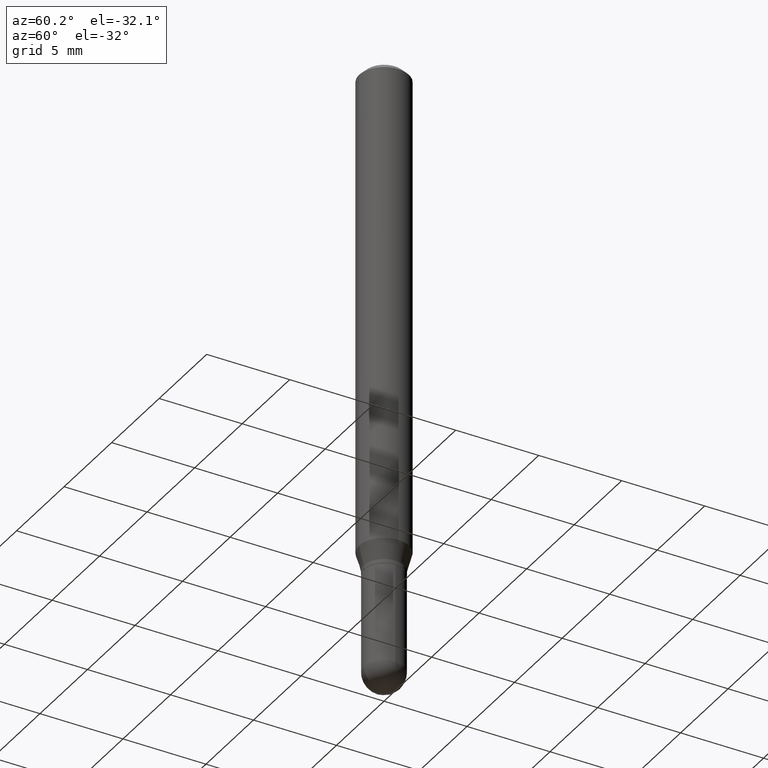
[diagram: clean part render]
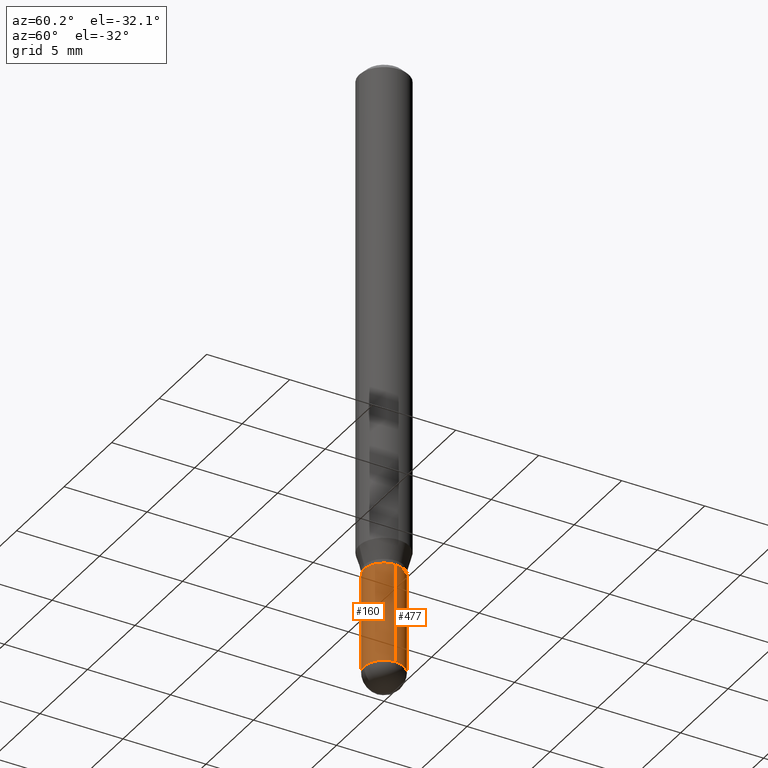
[diagram: same view with one multi-face feature highlighted, each face labeled with its STEP entity id]
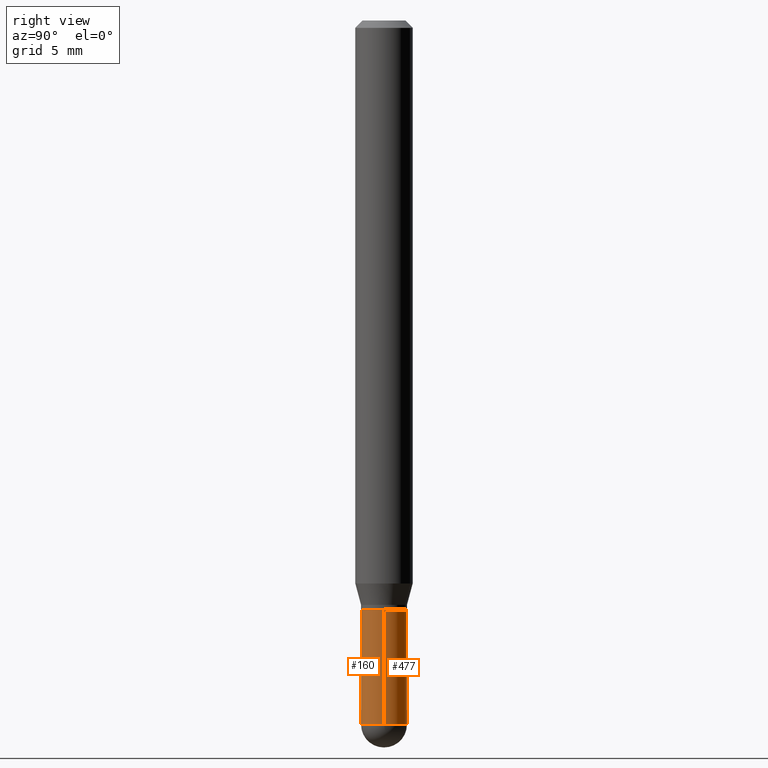
[diagram: same view with one multi-face feature highlighted, each face labeled with its STEP entity id]
A machine part, auxiliary view. The highlighted faces form ONE feature: a constant-radius fillet chain: 2 tangent blend faces with common blend radius 1.2001 mm. The faces share edges in the B-rep.
A second angle (right view) of the same feature is appended — it is thin or edge-on in the first view.
Their STEP definitions:
[1] entity #160 (Cylinder):
#3 = ORIENTED_EDGE ( 'NONE', *, *, #89, .T. ) ;
#47 = CARTESIAN_POINT ( 'NONE',  ( 3.543117479841335070E-29, -5.058632737782891656E-15, -1.448849999999999971 ) ) ;
#73 = DIRECTION ( 'NONE',  ( 1.000000000000000000, -6.982962677686266711E-15, 4.876176775795935793E-29 ) ) ;
#75 = DIRECTION ( 'NONE',  ( 1.000000000000000000, -6.982962677686267499E-15, 0.000000000000000000 ) ) ;
#77 = CYLINDRICAL_SURFACE ( 'NONE', #257, 0.04724999999999998646 ) ;
#83 = AXIS2_PLACEMENT_3D ( 'NONE', #379, #374, #387 ) ;
#89 = EDGE_CURVE ( 'NONE', #267, #121, #465, .T. ) ;
#107 = VECTOR ( 'NONE', #466, 39.37007874015748143 ) ;
#115 = ORIENTED_EDGE ( 'NONE', *, *, #269, .T. ) ;
#119 = CARTESIAN_POINT ( 'NONE',  ( 0.04724999999999998646, -4.976146491152720682E-15, -1.448849999999999971 ) ) ;
#121 = VERTEX_POINT ( 'NONE', #149 ) ;
#143 = VERTEX_POINT ( 'NONE', #297 ) ;
#144 = DIRECTION ( 'NONE',  ( -2.445468806185136877E-29, 3.491481338843145188E-15, 1.000000000000000000 ) ) ;
#149 = CARTESIAN_POINT ( 'NONE',  ( 0.04724999999999999339, -4.563715258001873701E-15, -1.212599999999999900 ) ) ;
#160 = ADVANCED_FACE ( 'NONE', ( #415 ), #77, .T. ) ;
#161 = DIRECTION ( 'NONE',  ( -2.445468806185136597E-29, 3.491481338843145583E-15, 1.000000000000000000 ) ) ;
#171 = VECTOR ( 'NONE', #144, 39.37007874015748143 ) ;
#177 = EDGE_CURVE ( 'NONE', #178, #143, #226, .T. ) ;
#178 = VERTEX_POINT ( 'NONE', #411 ) ;
#192 = CARTESIAN_POINT ( 'NONE',  ( 2.965375474380096235E-29, -4.233770271481197693E-15, -1.212599999999999900 ) ) ;
#198 = CARTESIAN_POINT ( 'NONE',  ( -0.04724999999999998646, 3.357314426466472416E-16, -2.324196830145442465E-30 ) ) ;
#226 = LINE ( 'NONE', #198, #107 ) ;
#256 = CARTESIAN_POINT ( 'NONE',  ( 0.000000000000000000, 0.000000000000000000, 0.000000000000000000 ) ) ;
#257 = AXIS2_PLACEMENT_3D ( 'NONE', #256, #408, #73 ) ;
#267 = VERTEX_POINT ( 'NONE', #119 ) ;
#269 = EDGE_CURVE ( 'NONE', #490, #267, #446, .T. ) ;
#297 = CARTESIAN_POINT ( 'NONE',  ( -0.04724999999999999339, -4.310470061985398025E-15, -1.212599999999999900 ) ) ;
#303 = CIRCLE ( 'NONE', #353, 0.04724999999999998646 ) ;
#320 = EDGE_CURVE ( 'NONE', #178, #490, #303, .T. ) ;
#340 = EDGE_CURVE ( 'NONE', #143, #121, #467, .T. ) ;
#350 = ORIENTED_EDGE ( 'NONE', *, *, #177, .F. ) ;
#353 = AXIS2_PLACEMENT_3D ( 'NONE', #47, #161, #75 ) ;
#357 = EDGE_LOOP ( 'NONE', ( #350, #453, #115, #3, #402 ) ) ;
#374 = DIRECTION ( 'NONE',  ( -2.445468806185136597E-29, 3.491481338843145583E-15, 1.000000000000000000 ) ) ;
#375 = CARTESIAN_POINT ( 'NONE',  ( 0.04724999999999998646, -3.299449865206760074E-16, 2.303993526563579130E-30 ) ) ;
#379 = CARTESIAN_POINT ( 'NONE',  ( 3.543117479841335070E-29, -5.058632737782891656E-15, -1.448849999999999971 ) ) ;
#387 = DIRECTION ( 'NONE',  ( 1.000000000000000000, -6.982962677686267499E-15, 0.000000000000000000 ) ) ;
#402 = ORIENTED_EDGE ( 'NONE', *, *, #340, .F. ) ;
#408 = DIRECTION ( 'NONE',  ( -2.445468806185136597E-29, 3.491481338843145583E-15, 1.000000000000000000 ) ) ;
#411 = CARTESIAN_POINT ( 'NONE',  ( -0.04724999999999998646, -4.310470061985398025E-15, -1.448849999999999971 ) ) ;
#415 = FACE_OUTER_BOUND ( 'NONE', #357, .T. ) ;
#418 = DIRECTION ( 'NONE',  ( -2.445468806185136597E-29, 3.491481338843145583E-15, 1.000000000000000000 ) ) ;
#423 = DIRECTION ( 'NONE',  ( 1.000000000000000000, -6.982962677686256455E-15, 0.000000000000000000 ) ) ;
#436 = CARTESIAN_POINT ( 'NONE',  ( -3.299449865206399170E-16, -0.04725000000000495470, -1.448849999999999749 ) ) ;
#446 = CIRCLE ( 'NONE', #83, 0.04724999999999998646 ) ;
#453 = ORIENTED_EDGE ( 'NONE', *, *, #320, .T. ) ;
#465 = LINE ( 'NONE', #375, #171 ) ;
#466 = DIRECTION ( 'NONE',  ( -2.445468806185136877E-29, 3.491481338843145188E-15, 1.000000000000000000 ) ) ;
#467 = CIRCLE ( 'NONE', #484, 0.04724999999999999339 ) ;
#484 = AXIS2_PLACEMENT_3D ( 'NONE', #192, #418, #423 ) ;
#490 = VERTEX_POINT ( 'NONE', #436 ) ;
[2] entity #477 (Cylinder):
#21 = EDGE_LOOP ( 'NONE', ( #410, #258, #398, #389, #46 ) ) ;
#25 = AXIS2_PLACEMENT_3D ( 'NONE', #215, #181, #326 ) ;
#36 = DIRECTION ( 'NONE',  ( 1.000000000000000000, -6.982962677686256455E-15, 0.000000000000000000 ) ) ;
#46 = ORIENTED_EDGE ( 'NONE', *, *, #81, .T. ) ;
#48 = CIRCLE ( 'NONE', #285, 0.04724999999999998646 ) ;
#49 = EDGE_CURVE ( 'NONE', #74, #178, #290, .T. ) ;
#60 = DIRECTION ( 'NONE',  ( -2.445468806185136597E-29, 3.491481338843145583E-15, 1.000000000000000000 ) ) ;
#74 = VERTEX_POINT ( 'NONE', #457 ) ;
#81 = EDGE_CURVE ( 'NONE', #267, #74, #48, .T. ) ;
#89 = EDGE_CURVE ( 'NONE', #267, #121, #465, .T. ) ;
#94 = CARTESIAN_POINT ( 'NONE',  ( 0.000000000000000000, 0.000000000000000000, 0.000000000000000000 ) ) ;
#107 = VECTOR ( 'NONE', #466, 39.37007874015748143 ) ;
#119 = CARTESIAN_POINT ( 'NONE',  ( 0.04724999999999998646, -4.976146491152720682E-15, -1.448849999999999971 ) ) ;
#121 = VERTEX_POINT ( 'NONE', #149 ) ;
#125 = DIRECTION ( 'NONE',  ( 1.000000000000000000, -6.982962677686266711E-15, 4.876176775795935793E-29 ) ) ;
#143 = VERTEX_POINT ( 'NONE', #297 ) ;
#144 = DIRECTION ( 'NONE',  ( -2.445468806185136877E-29, 3.491481338843145188E-15, 1.000000000000000000 ) ) ;
#149 = CARTESIAN_POINT ( 'NONE',  ( 0.04724999999999999339, -4.563715258001873701E-15, -1.212599999999999900 ) ) ;
#171 = VECTOR ( 'NONE', #144, 39.37007874015748143 ) ;
#177 = EDGE_CURVE ( 'NONE', #178, #143, #226, .T. ) ;
#178 = VERTEX_POINT ( 'NONE', #411 ) ;
#181 = DIRECTION ( 'NONE',  ( -2.445468806185136597E-29, 3.491481338843145583E-15, 1.000000000000000000 ) ) ;
#194 = AXIS2_PLACEMENT_3D ( 'NONE', #94, #60, #125 ) ;
#198 = CARTESIAN_POINT ( 'NONE',  ( -0.04724999999999998646, 3.357314426466472416E-16, -2.324196830145442465E-30 ) ) ;
#207 = AXIS2_PLACEMENT_3D ( 'NONE', #304, #507, #36 ) ;
#208 = FACE_OUTER_BOUND ( 'NONE', #21, .T. ) ;
#215 = CARTESIAN_POINT ( 'NONE',  ( 3.543117479841335070E-29, -5.058632737782891656E-15, -1.448849999999999971 ) ) ;
#223 = DIRECTION ( 'NONE',  ( 1.000000000000000000, -6.982962677686267499E-15, 0.000000000000000000 ) ) ;
#226 = LINE ( 'NONE', #198, #107 ) ;
#258 = ORIENTED_EDGE ( 'NONE', *, *, #177, .T. ) ;
#267 = VERTEX_POINT ( 'NONE', #119 ) ;
#268 = DIRECTION ( 'NONE',  ( -2.445468806185136597E-29, 3.491481338843145583E-15, 1.000000000000000000 ) ) ;
#283 = EDGE_CURVE ( 'NONE', #121, #143, #352, .T. ) ;
#285 = AXIS2_PLACEMENT_3D ( 'NONE', #500, #268, #223 ) ;
#290 = CIRCLE ( 'NONE', #25, 0.04724999999999998646 ) ;
#297 = CARTESIAN_POINT ( 'NONE',  ( -0.04724999999999999339, -4.310470061985398025E-15, -1.212599999999999900 ) ) ;
#304 = CARTESIAN_POINT ( 'NONE',  ( 2.965375474380096235E-29, -4.233770271481197693E-15, -1.212599999999999900 ) ) ;
#322 = CYLINDRICAL_SURFACE ( 'NONE', #194, 0.04724999999999998646 ) ;
#326 = DIRECTION ( 'NONE',  ( 1.000000000000000000, -6.982962677686267499E-15, 0.000000000000000000 ) ) ;
#352 = CIRCLE ( 'NONE', #207, 0.04724999999999999339 ) ;
#375 = CARTESIAN_POINT ( 'NONE',  ( 0.04724999999999998646, -3.299449865206760074E-16, 2.303993526563579130E-30 ) ) ;
#389 = ORIENTED_EDGE ( 'NONE', *, *, #89, .F. ) ;
#398 = ORIENTED_EDGE ( 'NONE', *, *, #283, .F. ) ;
#410 = ORIENTED_EDGE ( 'NONE', *, *, #49, .T. ) ;
#411 = CARTESIAN_POINT ( 'NONE',  ( -0.04724999999999998646, -4.310470061985398025E-15, -1.448849999999999971 ) ) ;
#457 = CARTESIAN_POINT ( 'NONE',  ( 3.357314426466819515E-16, 0.04724999999999483086, -1.448850000000000415 ) ) ;
#465 = LINE ( 'NONE', #375, #171 ) ;
#466 = DIRECTION ( 'NONE',  ( -2.445468806185136877E-29, 3.491481338843145188E-15, 1.000000000000000000 ) ) ;
#477 = ADVANCED_FACE ( 'NONE', ( #208 ), #322, .T. ) ;
#500 = CARTESIAN_POINT ( 'NONE',  ( 3.543117479841335070E-29, -5.058632737782891656E-15, -1.448849999999999971 ) ) ;
#507 = DIRECTION ( 'NONE',  ( -2.445468806185136597E-29, 3.491481338843145583E-15, 1.000000000000000000 ) ) ;